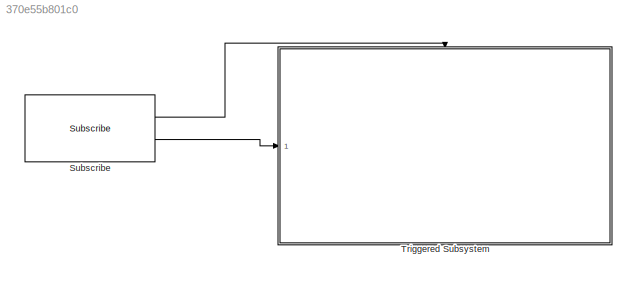
MODEL slx_370e55b801c0
KIND model
CONFIG AbsTol = auto
CONFIG FixedStep = 0.01
CONFIG MaxStep = auto
CONFIG MinStep = auto
CONFIG RelTol = 1e-3
CONFIG SampleTimeConstraint = Unconstrained
CONFIG Solver = ode3
CONFIG SolverMode = Auto
CONFIG SolverName = ode3
CONFIG StartTime = 0.0
CONFIG StopTime = inf
BLOCK [Reference] Subscribe  REF=robotlib/Subscribe
  Ports = [0, 2]
  SourceBlock = robotlib/Subscribe
  SourceLibraryInfo = This block requires Robotics System Toolbox
  SourceType = ROS Subscribe
  messageQueueLength = 1
  messageType = std_msgs/String
  sampleTime = -1
  topic = /MyTopic2
  topicSource = Specify your own
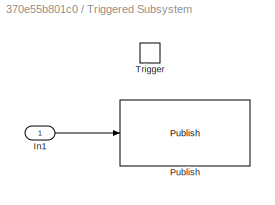
BLOCK [SubSystem] Triggered Subsystem
  Ports = [1, 0, 0, 1]
  RequestExecContextInheritance = off
  TreatAsAtomicUnit = on
BLOCK [Inport] Triggered Subsystem/In1
  IconDisplay = Port number
BLOCK [Reference] Triggered Subsystem/Publish  REF=robotlib/Publish
  Ports = [1]
  SourceBlock = robotlib/Publish
  SourceLibraryInfo = This block requires Robotics System Toolbox
  SourceType = ROS Publish
  messageQueueLength = 1
  messageType = std_msgs/String
  topic = /MyTopic
  topicSource = Specify your own
BLOCK [TriggerPort] Triggered Subsystem/Trigger
  Ports = []
  StatesWhenEnabling = held
LINE Subscribe:1 -> Triggered Subsystem:trigger
LINE Subscribe:2 -> Triggered Subsystem:1
LINE Triggered Subsystem/In1:1 -> Triggered Subsystem/Publish:1
